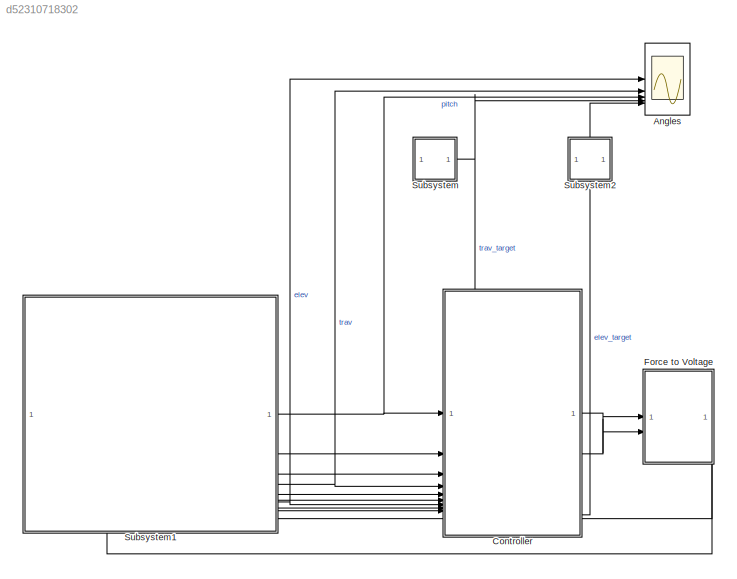
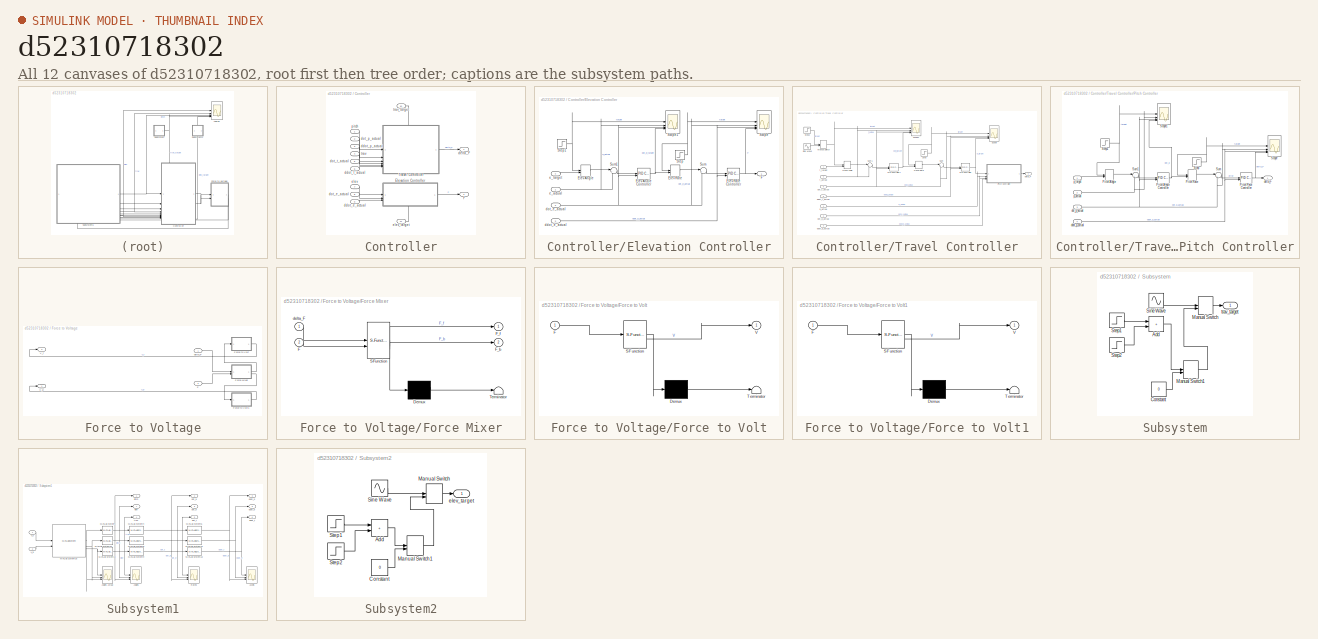
[diagram: thumbnail index - all 12 canvases of the model, root first then tree order]
MODEL slx_d52310718302
KIND model
CONFIG AbsTol = auto
CONFIG EnableMultiTasking = off
CONFIG FixedStep = 0.01
CONFIG MaxStep = auto
CONFIG MinStep = auto
CONFIG RelTol = 1e-3
CONFIG SampleTimeConstraint = Unconstrained
CONFIG SolverName = FixedStepDiscrete
CONFIG StartTime = 0.0
CONFIG StopTime = 45
BLOCK [Scope] Angles
  Floating = off
  NumInputPorts = 5
  ScopeSpecificationString = Simulink.scopes.TimeScopeBlockCfg('CurrentConfiguration', extmgr.ConfigurationSet(extmgr.Configuration('Core','General UI',true),extmgr.Configuration('Core','Source UI',true),extmgr.Configuration('Sources','WiredSimulink',true,'DataLoggingVariableName','ScopeData8'),extmgr.Configuration('Visuals','Time Domain',true,'TimeAxisLabels','All','SerializedDisplays',{struct('MinYLimReal','-0.98324','MaxYL...<+1799ch>
BLOCK [SubSystem] Controller
  PortSchema = {"entries":[{"content":{"sides":[{"content":{"connectorIds":["In1","In2","In3","In4","In5","In6","In7","In8","In9"]},"type":"ConnectorPlacement.EquallySpacedRectSide","uuid":"b9be8901-0178-4093-bc1f-7a19329e3ddd"},{"content":{"connectorIds":["Out1","Out2"],"side":"RIGHT"},"type":"ConnectorPlacement.EquallySpacedRectSide","uuid":"79e1f72b-8678-4c9d-874f-f1aeb3aff2e8"},{"content":{"connectorIds":["I...<+308ch>
BLOCK [SubSystem] Controller/Elevation Controller
  PortSchema = {"entries":[{"content":{"sides":[{"content":{"connectorIds":["In1","In2","In3"]},"type":"ConnectorPlacement.EquallySpacedRectSide","uuid":"9da0c654-dd8f-4eac-9c62-49b15265654d"},{"content":{"connectorIds":["Out1"],"side":"RIGHT"},"type":"ConnectorPlacement.EquallySpacedRectSide","uuid":"bed5ee04-0f93-4f10-b230-05550981109f"},{"content":{"side":"TOP"},"type":"ConnectorPlacement.EquallySpacedRectSid...<+383ch>
BLOCK [ManualSwitch] Controller/Elevation Controller/Elev Angle
  CurrentSetting = 0
BLOCK [Reference] Controller/Elevation Controller/Elev Angle Controller  REF=slpidlib/PID Controller
  SourceBlock = slpidlib/PID Controller
  SourceType = PID 1dof
BLOCK [ManualSwitch] Controller/Elevation Controller/Elev Rate
  CurrentSetting = 0
BLOCK [Reference] Controller/Elevation Controller/Elev Rate Controller  REF=slpidlib/PID Controller
  SourceBlock = slpidlib/PID Controller
  SourceType = PID 1dof
BLOCK [Outport] Controller/Elevation Controller/F
BLOCK [Scope] Controller/Elevation Controller/Scope
  Floating = off
  NumInputPorts = 4
  ScopeSpecificationString = Simulink.scopes.TimeScopeBlockCfg('CurrentConfiguration', extmgr.ConfigurationSet(extmgr.Configuration('Core','General UI',true),extmgr.Configuration('Core','Source UI',true),extmgr.Configuration('Sources','WiredSimulink',true,'DataLoggingVariableName','ScopeData4'),extmgr.Configuration('Visuals','Time Domain',true,'SerializedDisplays',{struct('MinYLimReal','-4.05169','MaxYLimReal','4.89463','YLab...<+1653ch>
BLOCK [Scope] Controller/Elevation Controller/Scope1
  Floating = off
  NumInputPorts = 4
  ScopeSpecificationString = Simulink.scopes.TimeScopeBlockCfg('CurrentConfiguration', extmgr.ConfigurationSet(extmgr.Configuration('Core','General UI',true),extmgr.Configuration('Core','Source UI',true),extmgr.Configuration('Sources','WiredSimulink',true,'DataLoggingVariableName','ScopeData5'),extmgr.Configuration('Visuals','Time Domain',true,'SerializedDisplays',{struct('MinYLimReal','-1.12021','MaxYLimReal','1.491','YLabel...<+1652ch>
BLOCK [Step] Controller/Elevation Controller/Step
  After = deg2rad(45)
  SampleTime = 0
BLOCK [Step] Controller/Elevation Controller/Step1
  After = deg2rad(0)
  Before = deg2rad(-30)
  SampleTime = 0
BLOCK [Sum] Controller/Elevation Controller/Sum
  Inputs = |+-
BLOCK [Sum] Controller/Elevation Controller/Sum1
  Inputs = |+-
BLOCK [Inport] Controller/Elevation Controller/ddot_e_actual
  Port = 3
BLOCK [Inport] Controller/Elevation Controller/dot_e_actual
  Port = 2
BLOCK [Inport] Controller/Elevation Controller/e_actual
BLOCK [Inport] Controller/Elevation Controller/e_target
  Port = 4
BLOCK [Outport] Controller/F
  Port = 2
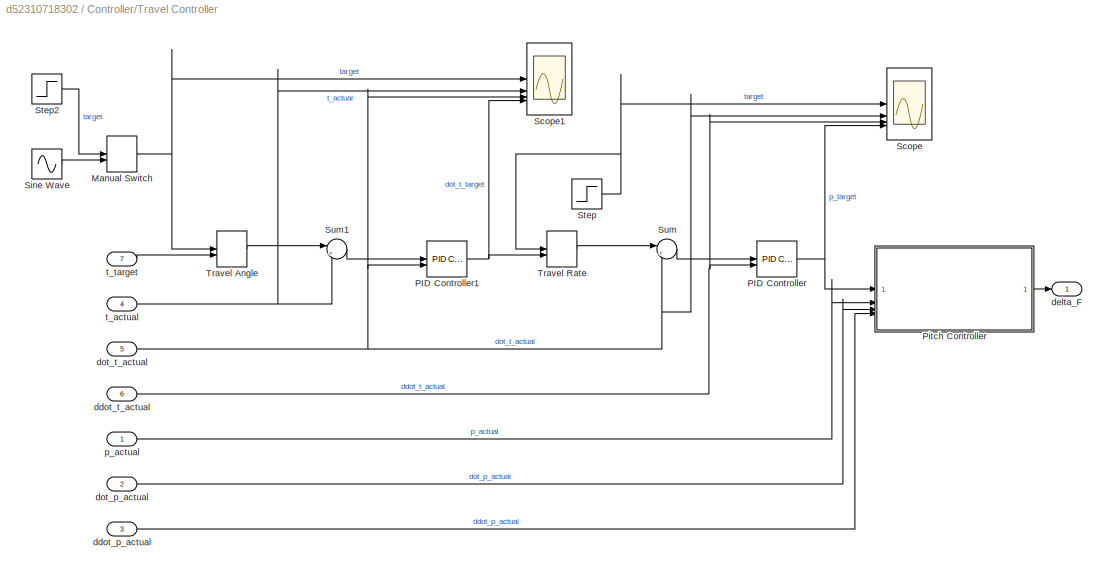
BLOCK [SubSystem] Controller/Travel Controller
  PortSchema = {"entries":[{"content":{"sides":[{"content":{"connectorIds":["In1","In2","In3","In4","In5","In6"]},"type":"ConnectorPlacement.EquallySpacedRectSide","uuid":"73e9ec17-e7a6-4f85-a13a-6f8910987c35"},{"content":{"connectorIds":["Out1"],"side":"RIGHT"},"type":"ConnectorPlacement.EquallySpacedRectSide","uuid":"c5195cd8-79c4-4218-a9bb-56ca77b55f6e"},{"content":{"connectorIds":["In7"],"side":"TOP"},"type"...<+275ch>
BLOCK [ManualSwitch] Controller/Travel Controller/Manual Switch
BLOCK [Reference] Controller/Travel Controller/PID Controller  REF=slpidlib/PID Controller
  LibrarySourceBlock = simulink/Continuous/PID Controller
  SourceBlock = slpidlib/PID Controller
  SourceType = PID 1dof
BLOCK [Reference] Controller/Travel Controller/PID Controller1  REF=slpidlib/PID Controller
  LibrarySourceBlock = simulink/Continuous/PID Controller
  SourceBlock = slpidlib/PID Controller
  SourceType = PID 1dof
BLOCK [SubSystem] Controller/Travel Controller/Pitch Controller
BLOCK [ManualSwitch] Controller/Travel Controller/Pitch Controller/Pitch Angle
  CurrentSetting = 0
BLOCK [Reference] Controller/Travel Controller/Pitch Controller/Pitch Angle Controller  REF=slpidlib/PID Controller
  LibrarySourceBlock = simulink/Continuous/PID Controller
  SourceBlock = slpidlib/PID Controller
  SourceType = PID 1dof
BLOCK [ManualSwitch] Controller/Travel Controller/Pitch Controller/Pitch Rate
  CurrentSetting = 0
BLOCK [Reference] Controller/Travel Controller/Pitch Controller/Pitch Rate Controller  REF=slpidlib/PID Controller
  LibrarySourceBlock = simulink/Continuous/PID Controller
  SourceBlock = slpidlib/PID Controller
  SourceType = PID 1dof
BLOCK [Scope] Controller/Travel Controller/Pitch Controller/Scope
  Floating = off
  NumInputPorts = 4
  ScopeSpecificationString = Simulink.scopes.TimeScopeBlockCfg('CurrentConfiguration', extmgr.ConfigurationSet(extmgr.Configuration('Core','General UI',true),extmgr.Configuration('Core','Source UI',true),extmgr.Configuration('Sources','WiredSimulink',true,'DataLoggingVariableName','ScopeData4'),extmgr.Configuration('Visuals','Time Domain',true,'SerializedDisplays',{struct('MinYLimReal','-1.28126','MaxYLimReal','2.36','YLabelR...<+1625ch>
BLOCK [Scope] Controller/Travel Controller/Pitch Controller/Scope1
  Floating = off
  NumInputPorts = 4
  ScopeSpecificationString = Simulink.scopes.TimeScopeBlockCfg('CurrentConfiguration', extmgr.ConfigurationSet(extmgr.Configuration('Core','General UI',true),extmgr.Configuration('Core','Source UI',true),extmgr.Configuration('Sources','WiredSimulink',true,'DataLoggingVariableName','ScopeData1'),extmgr.Configuration('Visuals','Time Domain',true,'SerializedDisplays',{struct('MinYLimReal','-0.60828','MaxYLimReal','1.81292','YLab...<+1630ch>
BLOCK [Step] Controller/Travel Controller/Pitch Controller/Step
  After = deg2rad(45)
  SampleTime = 0
BLOCK [Step] Controller/Travel Controller/Pitch Controller/Step1
  After = deg2rad(30)
  SampleTime = 0
BLOCK [Sum] Controller/Travel Controller/Pitch Controller/Sum
  Inputs = |+-
BLOCK [Sum] Controller/Travel Controller/Pitch Controller/Sum1
  Inputs = |+-
BLOCK [Inport] Controller/Travel Controller/Pitch Controller/ddot_p_actual
  Port = 4
BLOCK [Outport] Controller/Travel Controller/Pitch Controller/delta_F
BLOCK [Inport] Controller/Travel Controller/Pitch Controller/dot_p_actual
  Port = 3
BLOCK [Inport] Controller/Travel Controller/Pitch Controller/p_actual
  Port = 2
BLOCK [Inport] Controller/Travel Controller/Pitch Controller/p_target
BLOCK [Scope] Controller/Travel Controller/Scope
  Floating = off
  NumInputPorts = 4
  ScopeSpecificationString = Simulink.scopes.TimeScopeBlockCfg('CurrentConfiguration', extmgr.ConfigurationSet(extmgr.Configuration('Core','General UI',true),extmgr.Configuration('Core','Source UI',true),extmgr.Configuration('Sources','WiredSimulink',true,'DataLoggingVariableName','ScopeData2'),extmgr.Configuration('Visuals','Time Domain',true,'SerializedDisplays',{struct('MinYLimReal','-1.12021','MaxYLimReal','1.491','YLabel...<+1653ch>
BLOCK [Scope] Controller/Travel Controller/Scope1
  Floating = off
  NumInputPorts = 4
  ScopeSpecificationString = Simulink.scopes.TimeScopeBlockCfg('CurrentConfiguration', extmgr.ConfigurationSet(extmgr.Configuration('Core','General UI',true),extmgr.Configuration('Core','Source UI',true),extmgr.Configuration('Sources','WiredSimulink',true,'DataLoggingVariableName','ScopeData3'),extmgr.Configuration('Visuals','Time Domain',true,'SerializedDisplays',{struct('MinYLimReal','-0.41499','MaxYLimReal','2.17628','YLab...<+1660ch>
BLOCK [Sin] Controller/Travel Controller/Sine Wave
  Amplitude = deg2rad(45)
  Frequency = 0.1
  SampleTime = 0
BLOCK [Step] Controller/Travel Controller/Step
  After = deg2rad(45)
  SampleTime = 0
BLOCK [Step] Controller/Travel Controller/Step2
  After = deg2rad(45)
  SampleTime = 0
BLOCK [Sum] Controller/Travel Controller/Sum
  Inputs = |+-
BLOCK [Sum] Controller/Travel Controller/Sum1
  Inputs = |+-
BLOCK [ManualSwitch] Controller/Travel Controller/Travel Angle
  CurrentSetting = 0
BLOCK [ManualSwitch] Controller/Travel Controller/Travel Rate
  CurrentSetting = 0
BLOCK [Inport] Controller/Travel Controller/ddot_p_actual
  Port = 3
BLOCK [Inport] Controller/Travel Controller/ddot_t_actual
  Port = 6
BLOCK [Outport] Controller/Travel Controller/delta_F
BLOCK [Inport] Controller/Travel Controller/dot_p_actual
  Port = 2
BLOCK [Inport] Controller/Travel Controller/dot_t_actual
  Port = 5
BLOCK [Inport] Controller/Travel Controller/p_actual
BLOCK [Inport] Controller/Travel Controller/t_actual
  Port = 4
BLOCK [Inport] Controller/Travel Controller/t_target
  Port = 7
BLOCK [Inport] Controller/ddot_e_actual
  Port = 9
BLOCK [Inport] Controller/ddot_p_actual
  Port = 3
BLOCK [Inport] Controller/ddot_t_actual
  Port = 6
BLOCK [Outport] Controller/delta_F
BLOCK [Inport] Controller/dot_e_actual
  Port = 8
BLOCK [Inport] Controller/dot_p_actual
  Port = 2
BLOCK [Inport] Controller/dot_t_actual
  Port = 5
BLOCK [Inport] Controller/elev
  Port = 7
BLOCK [Inport] Controller/elev_target
  Port = 11
BLOCK [Inport] Controller/pitch
BLOCK [Inport] Controller/trav
  Port = 4
BLOCK [Inport] Controller/trav_target
  Port = 10
BLOCK [SubSystem] Force to Voltage
  PortSchema = {"entries":[{"content":{"sides":[{"content":{"connectorIds":["In1","In2"]},"type":"ConnectorPlacement.EquallySpacedRectSide","uuid":"6f137349-bbac-4947-af72-a88291b00c32"},{"content":{"side":"RIGHT"},"type":"ConnectorPlacement.EquallySpacedRectSide","uuid":"62cbe85c-e78c-4219-9070-536950e9188e"},{"content":{"side":"TOP"},"type":"ConnectorPlacement.EquallySpacedRectSide","uuid":"b2b4bc51-a272-402c-...<+361ch>
BLOCK [Inport] Force to Voltage/F
  Port = 2
BLOCK [SubSystem] Force to Voltage/Force Mixer
  ErrorFcn = Stateflow.Translate.translate
  PermitHierarchicalResolution = ExplicitOnly
  SFBlockType = MATLAB Function
  TreatAsAtomicUnit = on
BLOCK [Demux] Force to Voltage/Force Mixer/ Demux 
  Outputs = 1
BLOCK [S-Function] Force to Voltage/Force Mixer/ SFunction 
  EnableBusSupport = on
  FunctionName = sf_sfun
  PortCounts = [2 3]
  SFcnIsStateOwnerBlock = off
  SFunctionDeploymentMode = off
  Tag = Stateflow S-Function 2
BLOCK [Terminator] Force to Voltage/Force Mixer/ Terminator 
BLOCK [Inport] Force to Voltage/Force Mixer/F
  Port = 2
BLOCK [Outport] Force to Voltage/Force Mixer/F_b
  Port = 2
BLOCK [Outport] Force to Voltage/Force Mixer/F_f
BLOCK [Inport] Force to Voltage/Force Mixer/delta_F
BLOCK [SubSystem] Force to Voltage/Force to Volt
  ErrorFcn = Stateflow.Translate.translate
  PermitHierarchicalResolution = ExplicitOnly
  SFBlockType = MATLAB Function
  TreatAsAtomicUnit = on
BLOCK [Demux] Force to Voltage/Force to Volt/ Demux 
  Outputs = 1
BLOCK [S-Function] Force to Voltage/Force to Volt/ SFunction 
  EnableBusSupport = on
  FunctionName = sf_sfun
  PortCounts = [1 2]
  SFcnIsStateOwnerBlock = off
  SFunctionDeploymentMode = off
  Tag = Stateflow S-Function 1
BLOCK [Terminator] Force to Voltage/Force to Volt/ Terminator 
BLOCK [Inport] Force to Voltage/Force to Volt/F
BLOCK [Outport] Force to Voltage/Force to Volt/V
BLOCK [SubSystem] Force to Voltage/Force to Volt1
  ErrorFcn = Stateflow.Translate.translate
  PermitHierarchicalResolution = ExplicitOnly
  SFBlockType = MATLAB Function
  TreatAsAtomicUnit = on
BLOCK [Demux] Force to Voltage/Force to Volt1/ Demux 
  Outputs = 1
BLOCK [S-Function] Force to Voltage/Force to Volt1/ SFunction 
  EnableBusSupport = on
  FunctionName = sf_sfun
  PortCounts = [1 2]
  SFcnIsStateOwnerBlock = off
  SFunctionDeploymentMode = off
  Tag = Stateflow S-Function 3
BLOCK [Terminator] Force to Voltage/Force to Volt1/ Terminator 
BLOCK [Inport] Force to Voltage/Force to Volt1/F
BLOCK [Outport] Force to Voltage/Force to Volt1/V
BLOCK [Outport] Force to Voltage/V_b
BLOCK [Outport] Force to Voltage/V_f
  Port = 2
BLOCK [Inport] Force to Voltage/delta_F
BLOCK [SubSystem] Subsystem
BLOCK [Sum] Subsystem/Add
  IconShape = rectangular
BLOCK [Constant] Subsystem/Constant
  Value = 0
BLOCK [ManualSwitch] Subsystem/Manual Switch
BLOCK [ManualSwitch] Subsystem/Manual Switch1
  CurrentSetting = 0
BLOCK [Sin] Subsystem/Sine Wave
  Amplitude = deg2rad(45)
  Frequency = 0.2
  SampleTime = 0
BLOCK [Step] Subsystem/Step1
  After = deg2rad(90)
  SampleTime = 0
  Time = 8
BLOCK [Step] Subsystem/Step2
  After = deg2rad(-45)
  SampleTime = 0
  Time = 25
BLOCK [Outport] Subsystem/trav_target
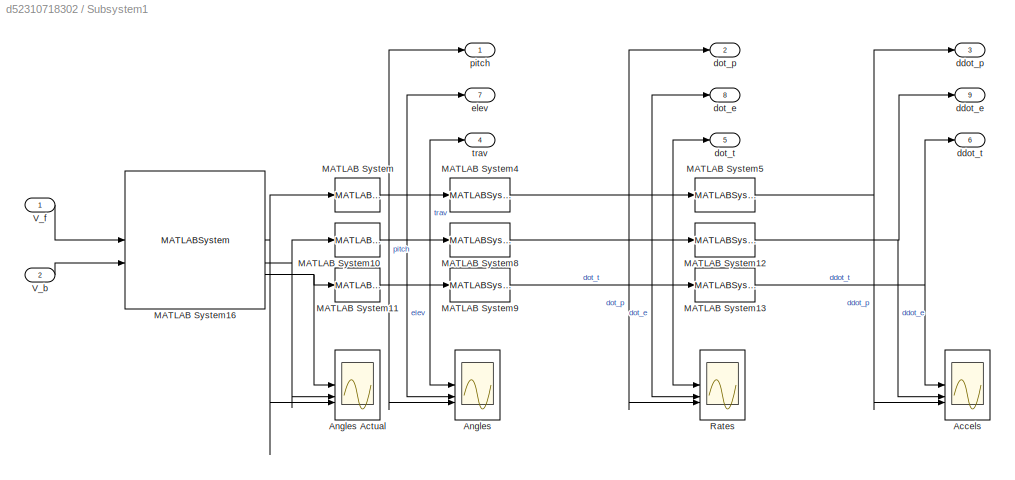
BLOCK [SubSystem] Subsystem1
  PortSchema = {"entries":[{"content":{"sides":[{"content":{},"type":"ConnectorPlacement.EquallySpacedRectSide","uuid":"85796e1e-dc7e-47a4-94ca-9dbd2389fb42"},{"content":{"connectorIds":["Out1","Out2","Out3","Out4","Out5","Out6","Out7","Out8","Out9"],"side":"RIGHT"},"type":"ConnectorPlacement.EquallySpacedRectSide","uuid":"0966b95d-a260-4754-9670-31181c58c2b3"},{"content":{"side":"TOP"},"type":"ConnectorPlacemen...<+411ch>
BLOCK [Scope] Subsystem1/Accels
  Floating = off
  NumInputPorts = 3
  ScopeSpecificationString = Simulink.scopes.TimeScopeBlockCfg('CurrentConfiguration', extmgr.ConfigurationSet(extmgr.Configuration('Core','General UI',true),extmgr.Configuration('Core','Source UI',true),extmgr.Configuration('Sources','WiredSimulink',true,'DataLoggingVariableName','ScopeData2'),extmgr.Configuration('Visuals','Time Domain',true,'SerializedDisplays',{struct('MinYLimReal','-6.38012','MaxYLimReal','19.66913','YLa...<+1620ch>
BLOCK [Scope] Subsystem1/Angles
  Floating = off
  NumInputPorts = 3
  ScopeSpecificationString = Simulink.scopes.TimeScopeBlockCfg('CurrentConfiguration', extmgr.ConfigurationSet(extmgr.Configuration('Core','General UI',true),extmgr.Configuration('Core','Source UI',true),extmgr.Configuration('Sources','WiredSimulink',true),extmgr.Configuration('Visuals','Time Domain',true,'SerializedDisplays',{struct('MinYLimReal','-0.94211','MaxYLimReal','0.75519','YLabelReal','','MinYLimMag','0.00000','MaxY...<+1502ch>
BLOCK [Scope] Subsystem1/Angles Actual
  Floating = off
  NumInputPorts = 3
  ScopeSpecificationString = Simulink.scopes.TimeScopeBlockCfg('CurrentConfiguration', extmgr.ConfigurationSet(extmgr.Configuration('Core','General UI',true),extmgr.Configuration('Core','Source UI',true),extmgr.Configuration('Sources','WiredSimulink',true,'DataLoggingVariableName','ScopeData6'),extmgr.Configuration('Visuals','Time Domain',true,'SerializedDisplays',{struct('MinYLimReal','-0.68458','MaxYLimReal','-0.08387','YLa...<+1581ch>
BLOCK [MATLABSystem] Subsystem1/MATLAB System
  MaskDisplay = disp('MovingAverage');\nport_label('input',1,'input');\nport_label('output',1,'avg');
  MaskType = MovingAverage
  SimulateUsing = Code generation
  System = MovingAverage
  window_size = 10
BLOCK [MATLABSystem] Subsystem1/MATLAB System10
  MaskDisplay = disp('MovingAverage');\nport_label('input',1,'input');\nport_label('output',1,'avg');
  MaskType = MovingAverage
  SimulateUsing = Code generation
  System = MovingAverage
  window_size = 10
BLOCK [MATLABSystem] Subsystem1/MATLAB System11
  MaskDisplay = disp('MovingAverage');\nport_label('input',1,'input');\nport_label('output',1,'avg');
  MaskType = MovingAverage
  SimulateUsing = Code generation
  System = MovingAverage
  window_size = 10
BLOCK [MATLABSystem] Subsystem1/MATLAB System12
  MaskDisplay = disp('Derivative');\nport_label('input',1,'val');\nport_label('output',1,'der');
  MaskType = Derivative
  SimulateUsing = Code generation
  System = Derivative
BLOCK [MATLABSystem] Subsystem1/MATLAB System13
  MaskDisplay = disp('Derivative');\nport_label('input',1,'val');\nport_label('output',1,'der');
  MaskType = Derivative
  SimulateUsing = Code generation
  System = Derivative
BLOCK [MATLABSystem] Subsystem1/MATLAB System16
  F_b = [ 0; 0; -1 ]
  F_f = [ 0; 0; -1 ]
  L_a = 25.75 * 0.0254
  L_h = 6.985 * 0.0254
  L_w = 18.125 * 0.0254
  MaskDisplay = disp('HeliSystem');\nport_label('input',1,'V_f');\nport_label('input',2,'V_b');\nport_label('output',1,'pitch');\nport_label('output',2,'elev');\nport_label('output',3,'trav');
  MaskType = HeliSystem
  SimulateUsing = Code generation
  System = HeliSystem
  T_b = [ 0; 0; -1 ]
  T_coeff_elev = 0.1
  T_coeff_pitch = 0.1
  T_coeff_trav = 0.1
  T_f = [ 0; 0; 1 ]
  T_stat_elev = 0.001
  T_stat_pitch = 0.001
  T_stat_trav = 0.005
  V_max = 30
  a_thrust = 0.0053
  a_torque = 0.0003
  ax_elev = [ 0; 1; 0 ]
  ax_pitch = [ -1; 0; 0 ]
  ax_trav = [ 0; 0; -1 ]
  b_1 = 0.20
  b_2 = 0.238
  b_3 = 25.75 * 0.0254
  b_4 = 0.0513
  b_thrust = 0.0022
  b_torque = 0.0004
  elev_init = deg2rad( -30 )
  elev_max = deg2rad( 30 )
  elev_min = deg2rad( -30 )
  g = 9.81
  m_b = 0.721
  m_f = 0.721
  m_w = 1.914
  pitch_init = deg2rad( 0 )
  pitch_max = deg2rad( 90 )
  pitch_min = deg2rad( -90 )
  theta = deg2rad( 17.1 )
  trav_init = deg2rad( 0 )
  trav_max = deg2rad( 180 )
  trav_min = deg2rad( -180 )
BLOCK [MATLABSystem] Subsystem1/MATLAB System4
  MaskDisplay = disp('Derivative');\nport_label('input',1,'val');\nport_label('output',1,'der');
  MaskType = Derivative
  SimulateUsing = Code generation
  System = Derivative
BLOCK [MATLABSystem] Subsystem1/MATLAB System5
  MaskDisplay = disp('Derivative');\nport_label('input',1,'val');\nport_label('output',1,'der');
  MaskType = Derivative
  SimulateUsing = Code generation
  System = Derivative
BLOCK [MATLABSystem] Subsystem1/MATLAB System8
  MaskDisplay = disp('Derivative');\nport_label('input',1,'val');\nport_label('output',1,'der');
  MaskType = Derivative
  SimulateUsing = Code generation
  System = Derivative
BLOCK [MATLABSystem] Subsystem1/MATLAB System9
  MaskDisplay = disp('Derivative');\nport_label('input',1,'val');\nport_label('output',1,'der');
  MaskType = Derivative
  SimulateUsing = Code generation
  System = Derivative
BLOCK [Scope] Subsystem1/Rates
  Floating = off
  NumInputPorts = 3
  ScopeSpecificationString = Simulink.scopes.TimeScopeBlockCfg('CurrentConfiguration', extmgr.ConfigurationSet(extmgr.Configuration('Core','General UI',true),extmgr.Configuration('Core','Source UI',true),extmgr.Configuration('Sources','WiredSimulink',true,'DataLoggingVariableName','ScopeData1'),extmgr.Configuration('Visuals','Time Domain',true,'SerializedDisplays',{struct('MinYLimReal','-1.32331','MaxYLimReal','0.03807','YLab...<+1979ch>
BLOCK [Inport] Subsystem1/V_b
  Port = 2
BLOCK [Inport] Subsystem1/V_f
BLOCK [Outport] Subsystem1/ddot_e
  Port = 9
BLOCK [Outport] Subsystem1/ddot_p
  Port = 3
BLOCK [Outport] Subsystem1/ddot_t
  Port = 6
BLOCK [Outport] Subsystem1/dot_e
  Port = 8
BLOCK [Outport] Subsystem1/dot_p
  Port = 2
BLOCK [Outport] Subsystem1/dot_t
  Port = 5
BLOCK [Outport] Subsystem1/elev
  Port = 7
BLOCK [Outport] Subsystem1/pitch
BLOCK [Outport] Subsystem1/trav
  Port = 4
BLOCK [SubSystem] Subsystem2
  PortSchema = {"entries":[{"content":{"sides":[{"content":{"connectorIds":["Out1"]},"type":"ConnectorPlacement.EquallySpacedRectSide","uuid":"f16ebcfb-7c7e-48d0-898d-d7ef16663e42"},{"content":{"side":"RIGHT"},"type":"ConnectorPlacement.EquallySpacedRectSide","uuid":"e9aec1bf-af4d-4e60-94a2-adac9fbe53b1"},{"content":{"side":"TOP"},"type":"ConnectorPlacement.EquallySpacedRectSide","uuid":"bae62bc1-b0f5-4305-8efd-...<+199ch>
BLOCK [Sum] Subsystem2/Add
  IconShape = rectangular
BLOCK [Constant] Subsystem2/Constant
  Value = 0
BLOCK [ManualSwitch] Subsystem2/Manual Switch
BLOCK [ManualSwitch] Subsystem2/Manual Switch1
  CurrentSetting = 0
BLOCK [Sin] Subsystem2/Sine Wave
  Amplitude = deg2rad(15)
  Frequency = 0.2
  SampleTime = 0
BLOCK [Step] Subsystem2/Step1
  After = deg2rad(15)
  SampleTime = 0
  Time = 8
BLOCK [Step] Subsystem2/Step2
  After = deg2rad(-15)
  SampleTime = 0
  Time = 18
BLOCK [Outport] Subsystem2/elev_target
NET Controller/Elevation Controller/Elev Angle Controller:1 -> Controller/Elevation Controller/Elev Rate:2, Controller/Elevation Controller/Scope1:4
LINE Controller/Elevation Controller/Elev Angle:1 -> Controller/Elevation Controller/Sum1:1
NET Controller/Elevation Controller/Elev Rate Controller:1 -> Controller/Elevation Controller/F:1, Controller/Elevation Controller/Scope:4
LINE Controller/Elevation Controller/Elev Rate:1 -> Controller/Elevation Controller/Sum:1
NET Controller/Elevation Controller/Step1:1 -> Controller/Elevation Controller/Elev Angle:1, Controller/Elevation Controller/Scope1:1
NET Controller/Elevation Controller/Step:1 -> Controller/Elevation Controller/Elev Rate:1, Controller/Elevation Controller/Scope:1
LINE Controller/Elevation Controller/Sum1:1 -> Controller/Elevation Controller/Elev Angle Controller:1
LINE Controller/Elevation Controller/Sum:1 -> Controller/Elevation Controller/Elev Rate Controller:1
NET Controller/Elevation Controller/ddot_e_actual:1 -> Controller/Elevation Controller/Elev Rate Controller:2, Controller/Elevation Controller/Scope:3
NET Controller/Elevation Controller/dot_e_actual:1 -> Controller/Elevation Controller/Elev Angle Controller:2, Controller/Elevation Controller/Scope1:3, Controller/Elevation Controller/Scope:2, Controller/Elevation Controller/Sum:2
NET Controller/Elevation Controller/e_actual:1 -> Controller/Elevation Controller/Scope1:2, Controller/Elevation Controller/Sum1:2
LINE Controller/Elevation Controller/e_target:1 -> Controller/Elevation Controller/Elev Angle:2
LINE Controller/Elevation Controller:1 -> Controller/F:1
NET Controller/Travel Controller/Manual Switch:1 -> Controller/Travel Controller/Scope1:1, Controller/Travel Controller/Travel Angle:1
NET Controller/Travel Controller/PID Controller1:1 -> Controller/Travel Controller/Scope1:4, Controller/Travel Controller/Travel Rate:2
NET Controller/Travel Controller/PID Controller:1 -> Controller/Travel Controller/Pitch Controller:1, Controller/Travel Controller/Scope:4
NET Controller/Travel Controller/Pitch Controller/Pitch Angle Controller:1 -> Controller/Travel Controller/Pitch Controller/Pitch Rate:2, Controller/Travel Controller/Pitch Controller/Scope1:4
LINE Controller/Travel Controller/Pitch Controller/Pitch Angle:1 -> Controller/Travel Controller/Pitch Controller/Sum1:1
NET Controller/Travel Controller/Pitch Controller/Pitch Rate Controller:1 -> Controller/Travel Controller/Pitch Controller/Scope:4, Controller/Travel Controller/Pitch Controller/delta_F:1
LINE Controller/Travel Controller/Pitch Controller/Pitch Rate:1 -> Controller/Travel Controller/Pitch Controller/Sum:1
NET Controller/Travel Controller/Pitch Controller/Step1:1 -> Controller/Travel Controller/Pitch Controller/Pitch Angle:1, Controller/Travel Controller/Pitch Controller/Scope1:1
NET Controller/Travel Controller/Pitch Controller/Step:1 -> Controller/Travel Controller/Pitch Controller/Pitch Rate:1, Controller/Travel Controller/Pitch Controller/Scope:1
LINE Controller/Travel Controller/Pitch Controller/Sum1:1 -> Controller/Travel Controller/Pitch Controller/Pitch Angle Controller:1
LINE Controller/Travel Controller/Pitch Controller/Sum:1 -> Controller/Travel Controller/Pitch Controller/Pitch Rate Controller:1
NET Controller/Travel Controller/Pitch Controller/ddot_p_actual:1 -> Controller/Travel Controller/Pitch Controller/Pitch Rate Controller:2, Controller/Travel Controller/Pitch Controller/Scope:3
NET Controller/Travel Controller/Pitch Controller/dot_p_actual:1 -> Controller/Travel Controller/Pitch Controller/Pitch Angle Controller:2, Controller/Travel Controller/Pitch Controller/Scope1:3, Controller/Travel Controller/Pitch Controller/Scope:2, Controller/Travel Controller/Pitch Controller/Sum:2
NET Controller/Travel Controller/Pitch Controller/p_actual:1 -> Controller/Travel Controller/Pitch Controller/Scope1:2, Controller/Travel Controller/Pitch Controller/Sum1:2
LINE Controller/Travel Controller/Pitch Controller/p_target:1 -> Controller/Travel Controller/Pitch Controller/Pitch Angle:2
LINE Controller/Travel Controller/Pitch Controller:1 -> Controller/Travel Controller/delta_F:1
LINE Controller/Travel Controller/Sine Wave:1 -> Controller/Travel Controller/Manual Switch:2
LINE Controller/Travel Controller/Step2:1 -> Controller/Travel Controller/Manual Switch:1
NET Controller/Travel Controller/Step:1 -> Controller/Travel Controller/Scope:1, Controller/Travel Controller/Travel Rate:1
LINE Controller/Travel Controller/Sum1:1 -> Controller/Travel Controller/PID Controller1:1
LINE Controller/Travel Controller/Sum:1 -> Controller/Travel Controller/PID Controller:1
LINE Controller/Travel Controller/Travel Angle:1 -> Controller/Travel Controller/Sum1:1
LINE Controller/Travel Controller/Travel Rate:1 -> Controller/Travel Controller/Sum:1
LINE Controller/Travel Controller/ddot_p_actual:1 -> Controller/Travel Controller/Pitch Controller:4
NET Controller/Travel Controller/ddot_t_actual:1 -> Controller/Travel Controller/PID Controller:2, Controller/Travel Controller/Scope:3
LINE Controller/Travel Controller/dot_p_actual:1 -> Controller/Travel Controller/Pitch Controller:3
NET Controller/Travel Controller/dot_t_actual:1 -> Controller/Travel Controller/PID Controller1:2, Controller/Travel Controller/Scope1:3, Controller/Travel Controller/Scope:2, Controller/Travel Controller/Sum:2
LINE Controller/Travel Controller/p_actual:1 -> Controller/Travel Controller/Pitch Controller:2
NET Controller/Travel Controller/t_actual:1 -> Controller/Travel Controller/Scope1:2, Controller/Travel Controller/Sum1:2
LINE Controller/Travel Controller/t_target:1 -> Controller/Travel Controller/Travel Angle:2
LINE Controller/Travel Controller:1 -> Controller/delta_F:1
LINE Controller/ddot_e_actual:1 -> Controller/Elevation Controller:3
LINE Controller/ddot_p_actual:1 -> Controller/Travel Controller:3
LINE Controller/ddot_t_actual:1 -> Controller/Travel Controller:6
LINE Controller/dot_e_actual:1 -> Controller/Elevation Controller:2
LINE Controller/dot_p_actual:1 -> Controller/Travel Controller:2
LINE Controller/dot_t_actual:1 -> Controller/Travel Controller:5
LINE Controller/elev:1 -> Controller/Elevation Controller:1
LINE Controller/elev_target:1 -> Controller/Elevation Controller:4
LINE Controller/pitch:1 -> Controller/Travel Controller:1
LINE Controller/trav:1 -> Controller/Travel Controller:4
LINE Controller/trav_target:1 -> Controller/Travel Controller:7
LINE Controller:1 -> Force to Voltage:1
LINE Controller:2 -> Force to Voltage:2
LINE Force to Voltage/F:1 -> Force to Voltage/Force Mixer:2
LINE Force to Voltage/Force Mixer:1 -> Force to Voltage/Force to Volt:1
LINE Force to Voltage/Force Mixer:2 -> Force to Voltage/Force to Volt1:1
LINE Force to Voltage/Force to Volt1:1 -> Force to Voltage/V_b:1
LINE Force to Voltage/Force to Volt:1 -> Force to Voltage/V_f:1
LINE Force to Voltage/delta_F:1 -> Force to Voltage/Force Mixer:1
LINE Force to Voltage:1 -> Subsystem1:2
LINE Force to Voltage:2 -> Subsystem1:1
LINE Subsystem/Add:1 -> Subsystem/Manual Switch1:1
LINE Subsystem/Constant:1 -> Subsystem/Manual Switch1:2
LINE Subsystem/Manual Switch1:1 -> Subsystem/Manual Switch:2
LINE Subsystem/Manual Switch:1 -> Subsystem/trav_target:1
LINE Subsystem/Sine Wave:1 -> Subsystem/Manual Switch:1
LINE Subsystem/Step1:1 -> Subsystem/Add:1
LINE Subsystem/Step2:1 -> Subsystem/Add:2
NET Subsystem1/MATLAB System10:1 -> Subsystem1/Angles:2, Subsystem1/MATLAB System8:1, Subsystem1/elev:1
NET Subsystem1/MATLAB System11:1 -> Subsystem1/Angles:1, Subsystem1/MATLAB System9:1, Subsystem1/trav:1
NET Subsystem1/MATLAB System12:1 -> Subsystem1/Accels:2, Subsystem1/ddot_e:1
NET Subsystem1/MATLAB System13:1 -> Subsystem1/Accels:1, Subsystem1/ddot_t:1
NET Subsystem1/MATLAB System16:1 -> Subsystem1/Angles Actual:3, Subsystem1/MATLAB System:1
NET Subsystem1/MATLAB System16:2 -> Subsystem1/Angles Actual:2, Subsystem1/MATLAB System10:1
NET Subsystem1/MATLAB System16:3 -> Subsystem1/Angles Actual:1, Subsystem1/MATLAB System11:1
NET Subsystem1/MATLAB System4:1 -> Subsystem1/MATLAB System5:1, Subsystem1/Rates:3, Subsystem1/dot_p:1
NET Subsystem1/MATLAB System5:1 -> Subsystem1/Accels:3, Subsystem1/ddot_p:1
NET Subsystem1/MATLAB System8:1 -> Subsystem1/MATLAB System12:1, Subsystem1/Rates:2, Subsystem1/dot_e:1
NET Subsystem1/MATLAB System9:1 -> Subsystem1/MATLAB System13:1, Subsystem1/Rates:1, Subsystem1/dot_t:1
NET Subsystem1/MATLAB System:1 -> Subsystem1/Angles:3, Subsystem1/MATLAB System4:1, Subsystem1/pitch:1
LINE Subsystem1/V_b:1 -> Subsystem1/MATLAB System16:2
LINE Subsystem1/V_f:1 -> Subsystem1/MATLAB System16:1
NET Subsystem1:1 -> Angles:3, Controller:1
LINE Subsystem1:2 -> Controller:2
LINE Subsystem1:3 -> Controller:3
NET Subsystem1:4 -> Angles:2, Controller:4
LINE Subsystem1:5 -> Controller:5
LINE Subsystem1:6 -> Controller:6
NET Subsystem1:7 -> Angles:1, Controller:7
LINE Subsystem1:8 -> Controller:8
LINE Subsystem1:9 -> Controller:9
LINE Subsystem2/Add:1 -> Subsystem2/Manual Switch1:1
LINE Subsystem2/Constant:1 -> Subsystem2/Manual Switch1:2
LINE Subsystem2/Manual Switch1:1 -> Subsystem2/Manual Switch:2
LINE Subsystem2/Manual Switch:1 -> Subsystem2/elev_target:1
LINE Subsystem2/Sine Wave:1 -> Subsystem2/Manual Switch:1
LINE Subsystem2/Step1:1 -> Subsystem2/Add:1
LINE Subsystem2/Step2:1 -> Subsystem2/Add:2
NET Subsystem2:1 -> Angles:5, Controller:11
NET Subsystem:1 -> Angles:4, Controller:10
note: NET lines group one-source signal fan-out (src -> all destinations, sorted); 1:1 wires keep LINE
CHART Force to Voltage/Force Mixer states=1 transitions=1
  STATE_LABEL 'eML_blk_kernel()'
  STATE_LABEL 'SCRIPT:\nfunction [F_f, F_b] = fcn(delta_F, F)\n    F_f = (F + delta_F) / 2;\n    F_b = (F - delta_F) / 2;\nend'
CHART Force to Voltage/Force to Volt1 states=1 transitions=1
  STATE_LABEL 'eML_blk_kernel()'
  STATE_LABEL 'SCRIPT:\nfunction V = fcn(F)\n    a = 0.0053;\n    b = 0.0022;\n    c = -abs(F);\n\n    V = (-b + sqrt(b^2 - 4*a*c)) / (2*a);\n\n    if F < 0\n        V = -V;\n    end\nend'
CHART Force to Voltage/Force to Volt states=1 transitions=1
  STATE_LABEL 'eML_blk_kernel()'
  STATE_LABEL 'SCRIPT:\nfunction V = fcn(F)\n    a = 0.0053;\n    b = 0.0022;\n    c = -abs(F);\n\n    V = (-b + sqrt(b^2 - 4*a*c)) / (2*a);\n\n    if F < 0\n        V = -V;\n    end\nend'
CHART  states=0 transitions=0
CHART  states=0 transitions=0
CHART  states=0 transitions=0
